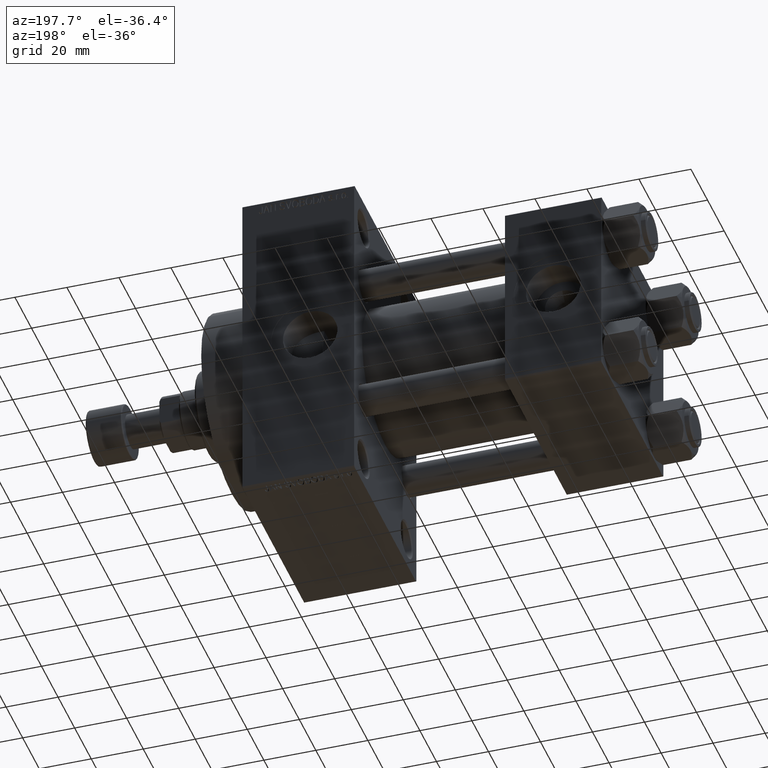
[diagram: clean part render]
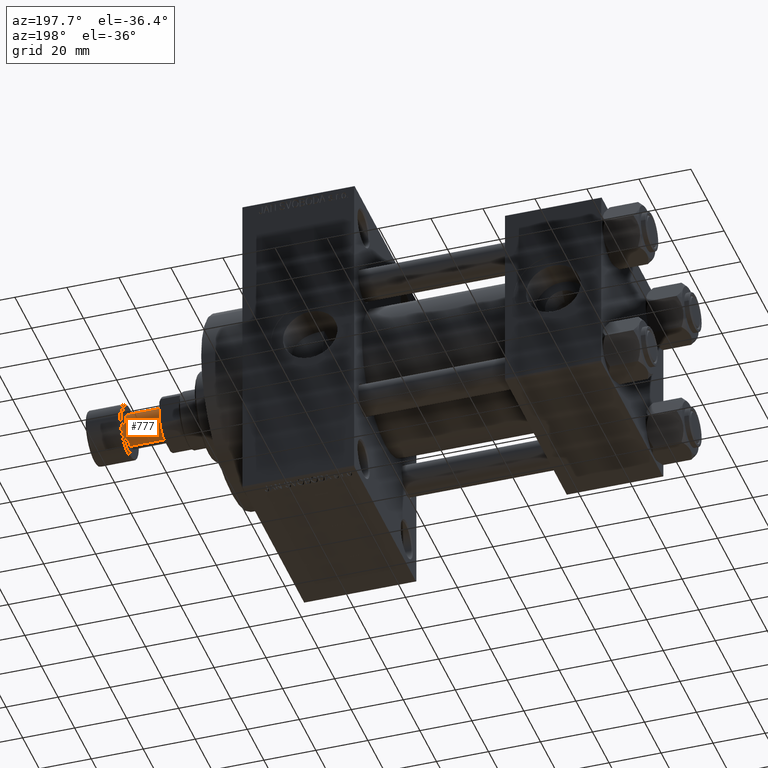
[diagram: same view with one face highlighted and labeled with its STEP entity id]
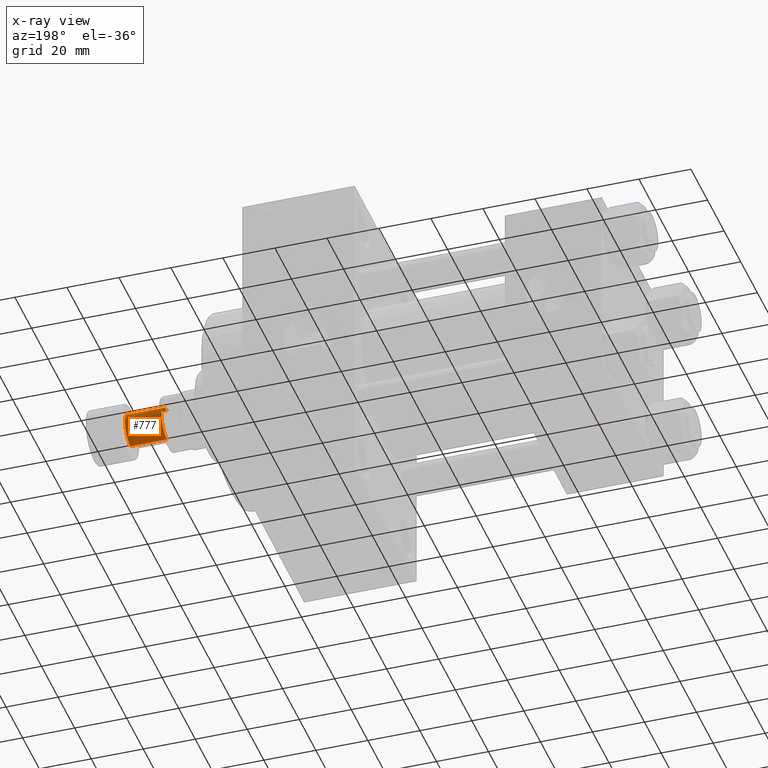
[diagram: x-ray of the same camera — body ghosted, the highlighted face saturated]
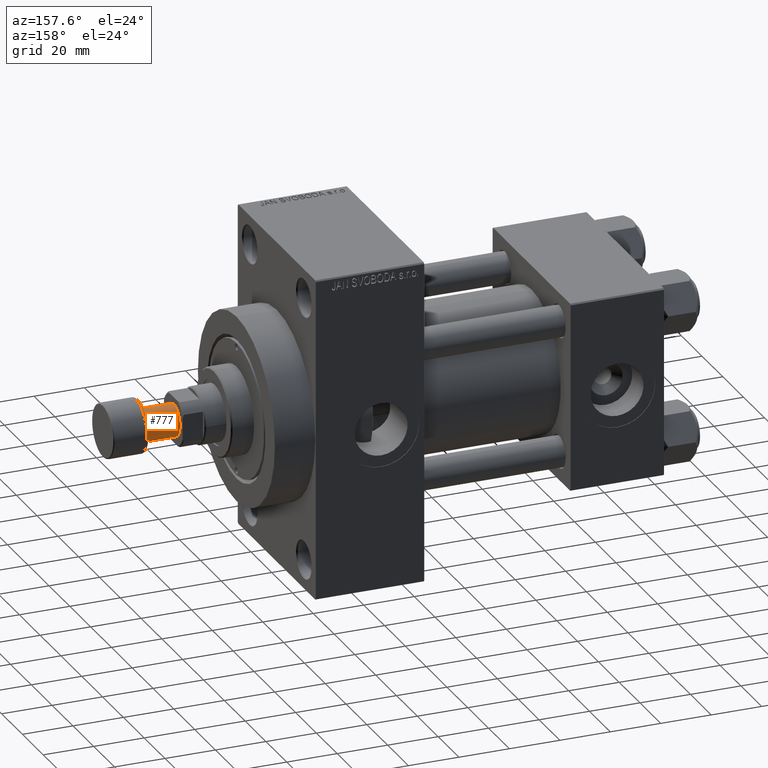
[diagram: same view with one face highlighted and labeled with its STEP entity id]
A machine part, auxiliary view. The second image highlights one B-rep face of the part: STEP entity #777.
The next image is the same camera in x-ray: the body ghosted, the highlighted face saturated — about 0% of this face is hidden behind the body in this view.
A second angle (auxiliary view) of the same face is appended — the face is thin or edge-on in the first view.
In plain terms, the highlighted cylindrical surface (edge-blend (fillet) strip) has radius 6.5 mm, axis along (1, 0, 0).
Its self-contained STEP definition (entity closure, byte-faithful):
#777 = ADVANCED_FACE ( 'NONE', ( #25555 ), #25795, .T. ) ;
#2115 = DIRECTION ( 'NONE',  ( -0.000000000000000000, -0.000000000000000000, 1.000000000000000000 ) ) ;
#2787 = EDGE_CURVE ( 'NONE', #33132, #40282, #28665, .T. ) ;
#3568 = CARTESIAN_POINT ( 'NONE',  ( 0.000000000000000000, 0.000000000000000000, -27.50000000000000000 ) ) ;
#6795 = AXIS2_PLACEMENT_3D ( 'NONE', #38379, #41765, #27489 ) ;
#9942 = DIRECTION ( 'NONE',  ( 0.000000000000000000, 0.000000000000000000, -1.000000000000000000 ) ) ;
#11750 = CARTESIAN_POINT ( 'NONE',  ( -6.500000000000000888, 7.960204194457796463E-16, -14.00000000000000000 ) ) ;
#16090 = EDGE_LOOP ( 'NONE', ( #33969, #32242, #18148, #28744 ) ) ;
#17172 = AXIS2_PLACEMENT_3D ( 'NONE', #3568, #37414, #40784 ) ;
#17816 = CARTESIAN_POINT ( 'NONE',  ( 6.500000000000000888, 0.000000000000000000, -28.00000000000000000 ) ) ;
#18148 = ORIENTED_EDGE ( 'NONE', *, *, #20564, .T. ) ;
#20564 = EDGE_CURVE ( 'NONE', #40282, #39500, #25331, .T. ) ;
#21173 = CARTESIAN_POINT ( 'NONE',  ( -6.500000000000000888, 7.960204194457796463E-16, -27.50000000000000000 ) ) ;
#21769 = DIRECTION ( 'NONE',  ( -1.000000000000000000, 0.000000000000000000, 0.000000000000000000 ) ) ;
#22813 = CARTESIAN_POINT ( 'NONE',  ( 6.500000000000000888, 0.000000000000000000, -27.50000000000000000 ) ) ;
#23194 = CIRCLE ( 'NONE', #42505, 6.500000000000000888 ) ;
#24395 = VERTEX_POINT ( 'NONE', #17816 ) ;
#25331 = CIRCLE ( 'NONE', #6795, 6.500000000000000888 ) ;
#25555 = FACE_OUTER_BOUND ( 'NONE', #16090, .T. ) ;
#25795 = CYLINDRICAL_SURFACE ( 'NONE', #17172, 6.500000000000000888 ) ;
#26348 = EDGE_CURVE ( 'NONE', #33132, #24395, #23194, .T. ) ;
#27489 = DIRECTION ( 'NONE',  ( -1.000000000000000000, 0.000000000000000000, 0.000000000000000000 ) ) ;
#28665 = LINE ( 'NONE', #21173, #35001 ) ;
#28744 = ORIENTED_EDGE ( 'NONE', *, *, #47563, .F. ) ;
#29499 = CARTESIAN_POINT ( 'NONE',  ( 0.000000000000000000, 0.000000000000000000, -28.00000000000000000 ) ) ;
#32242 = ORIENTED_EDGE ( 'NONE', *, *, #2787, .T. ) ;
#33132 = VERTEX_POINT ( 'NONE', #47321 ) ;
#33220 = LINE ( 'NONE', #22813, #33552 ) ;
#33552 = VECTOR ( 'NONE', #40711, 1000.000000000000000 ) ;
#33969 = ORIENTED_EDGE ( 'NONE', *, *, #26348, .F. ) ;
#35001 = VECTOR ( 'NONE', #2115, 1000.000000000000000 ) ;
#37414 = DIRECTION ( 'NONE',  ( -0.000000000000000000, -0.000000000000000000, 1.000000000000000000 ) ) ;
#38379 = CARTESIAN_POINT ( 'NONE',  ( 0.000000000000000000, 0.000000000000000000, -14.00000000000000000 ) ) ;
#39500 = VERTEX_POINT ( 'NONE', #39768 ) ;
#39768 = CARTESIAN_POINT ( 'NONE',  ( 6.500000000000000888, 0.000000000000000000, -14.00000000000000000 ) ) ;
#40282 = VERTEX_POINT ( 'NONE', #11750 ) ;
#40711 = DIRECTION ( 'NONE',  ( -0.000000000000000000, -0.000000000000000000, 1.000000000000000000 ) ) ;
#40784 = DIRECTION ( 'NONE',  ( 1.000000000000000000, 0.000000000000000000, 0.000000000000000000 ) ) ;
#41765 = DIRECTION ( 'NONE',  ( 0.000000000000000000, 0.000000000000000000, -1.000000000000000000 ) ) ;
#42505 = AXIS2_PLACEMENT_3D ( 'NONE', #29499, #9942, #21769 ) ;
#47321 = CARTESIAN_POINT ( 'NONE',  ( -6.500000000000000888, 7.960204194457796463E-16, -28.00000000000000000 ) ) ;
#47563 = EDGE_CURVE ( 'NONE', #24395, #39500, #33220, .T. ) ;